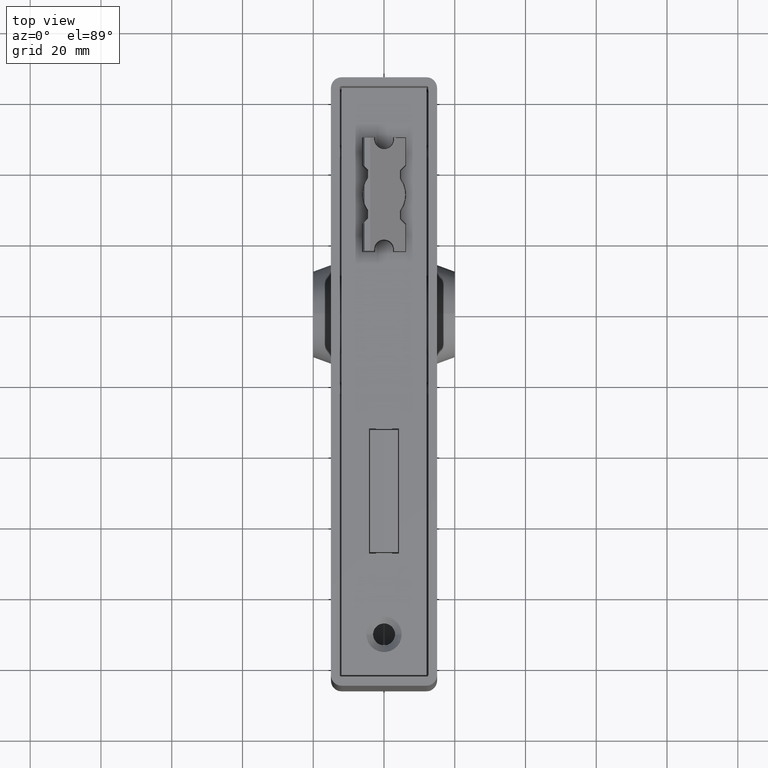
[diagram: clean part render]
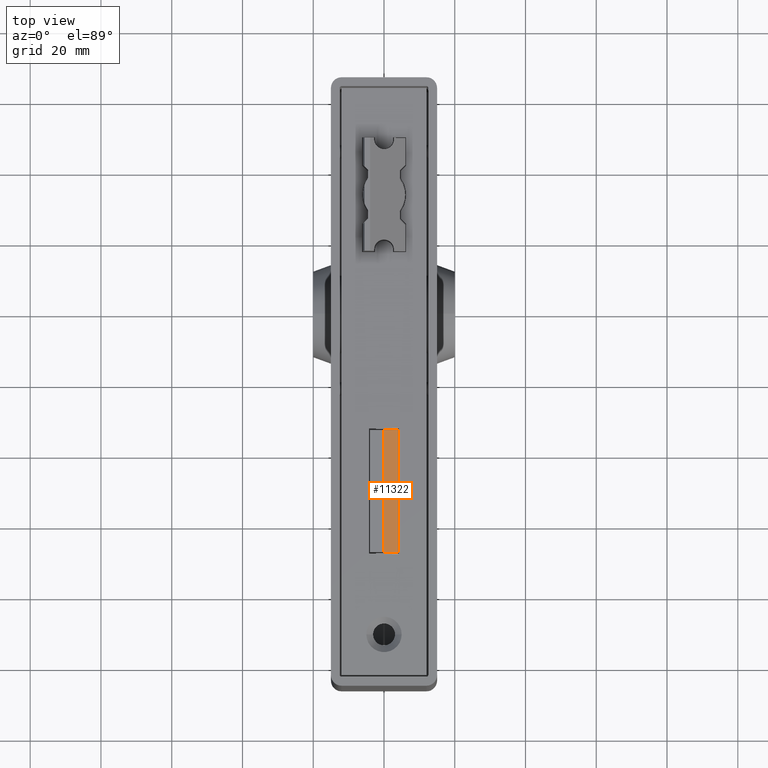
[diagram: same view with one face highlighted and labeled with its STEP entity id]
A machine part, top view. The second image highlights one B-rep face of the part: STEP entity #11322.
In plain terms, the highlighted cylindrical surface (partial cylindrical patch) has radius 80.05 mm, axis along (0, 1, 0).
Its self-contained STEP definition (entity closure, byte-faithful):
#107 = DIRECTION ( 'NONE',  ( -1.000000000000000000, 3.467279902014880349E-15, -2.045695142188779323E-14 ) ) ;
#183 = DIRECTION ( 'NONE',  ( -3.469446951953626811E-15, -1.000000000000000000, -0.000000000000000000 ) ) ;
#355 = CARTESIAN_POINT ( 'NONE',  ( -8.131516293689354466E-18, -48.24999999999999289, -76.84999999999941167 ) ) ;
#503 = FACE_OUTER_BOUND ( 'NONE', #17104, .T. ) ;
#1632 = EDGE_CURVE ( 'NONE', #12655, #14310, #2900, .T. ) ;
#2005 = CYLINDRICAL_SURFACE ( 'NONE', #16714, 80.04999999999941451 ) ;
#2871 = VERTEX_POINT ( 'NONE', #23808 ) ;
#2900 = LINE ( 'NONE', #19139, #22832 ) ;
#3223 = ORIENTED_EDGE ( 'NONE', *, *, #12756, .F. ) ;
#3565 = DIRECTION ( 'NONE',  ( -0.000000000000000000, 1.000000000000000000, -0.000000000000000000 ) ) ;
#4115 = DIRECTION ( 'NONE',  ( -0.000000000000000000, 1.000000000000000000, -0.000000000000000000 ) ) ;
#6485 = AXIS2_PLACEMENT_3D ( 'NONE', #18641, #22714, #15026 ) ;
#7942 = CARTESIAN_POINT ( 'NONE',  ( -8.131516293689354466E-18, -82.99999999999998579, -76.84999999999941167 ) ) ;
#8008 = ORIENTED_EDGE ( 'NONE', *, *, #1632, .T. ) ;
#8775 = CIRCLE ( 'NONE', #6485, 80.04999999999941451 ) ;
#9545 = DIRECTION ( 'NONE',  ( -0.000000000000000000, 1.000000000000000000, -0.000000000000000000 ) ) ;
#11322 = ADVANCED_FACE ( 'NONE', ( #503 ), #2005, .T. ) ;
#12655 = VERTEX_POINT ( 'NONE', #12848 ) ;
#12756 = EDGE_CURVE ( 'NONE', #12655, #23413, #14314, .T. ) ;
#12797 = CARTESIAN_POINT ( 'NONE',  ( -8.131516293689354466E-18, -48.24999999999999289, 3.200000000000008171 ) ) ;
#12848 = CARTESIAN_POINT ( 'NONE',  ( 3.999999999999972466, -48.25000000000000711, 3.099999999999998757 ) ) ;
#14310 = VERTEX_POINT ( 'NONE', #16830 ) ;
#14314 = CIRCLE ( 'NONE', #22072, 80.04999999999941451 ) ;
#15026 = DIRECTION ( 'NONE',  ( 0.000000000000000000, 0.000000000000000000, 1.000000000000000000 ) ) ;
#16714 = AXIS2_PLACEMENT_3D ( 'NONE', #7942, #4115, #17618 ) ;
#16830 = CARTESIAN_POINT ( 'NONE',  ( 3.999999999999972466, -13.74999999999998401, 3.099999999999998757 ) ) ;
#16836 = EDGE_CURVE ( 'NONE', #14310, #2871, #8775, .T. ) ;
#17104 = EDGE_LOOP ( 'NONE', ( #23833, #3223, #8008, #23162 ) ) ;
#17618 = DIRECTION ( 'NONE',  ( 0.000000000000000000, 0.000000000000000000, 1.000000000000000000 ) ) ;
#18211 = LINE ( 'NONE', #24522, #20929 ) ;
#18641 = CARTESIAN_POINT ( 'NONE',  ( -8.131516293689354466E-18, -13.74999999999998401, -76.84999999999941167 ) ) ;
#19139 = CARTESIAN_POINT ( 'NONE',  ( 3.999999999999972466, -82.99999999999998579, 3.099999999999998757 ) ) ;
#20638 = EDGE_CURVE ( 'NONE', #23413, #2871, #18211, .T. ) ;
#20929 = VECTOR ( 'NONE', #3565, 1000.000000000000000 ) ;
#22072 = AXIS2_PLACEMENT_3D ( 'NONE', #355, #183, #107 ) ;
#22714 = DIRECTION ( 'NONE',  ( -0.000000000000000000, -1.000000000000000000, -0.000000000000000000 ) ) ;
#22832 = VECTOR ( 'NONE', #9545, 1000.000000000000000 ) ;
#23162 = ORIENTED_EDGE ( 'NONE', *, *, #16836, .T. ) ;
#23413 = VERTEX_POINT ( 'NONE', #12797 ) ;
#23808 = CARTESIAN_POINT ( 'NONE',  ( -8.131516293689354466E-18, -13.74999999999998401, 3.200000000000008171 ) ) ;
#23833 = ORIENTED_EDGE ( 'NONE', *, *, #20638, .F. ) ;
#24522 = CARTESIAN_POINT ( 'NONE',  ( -8.131516293689354466E-18, -82.99999999999998579, 3.200000000000008171 ) ) ;